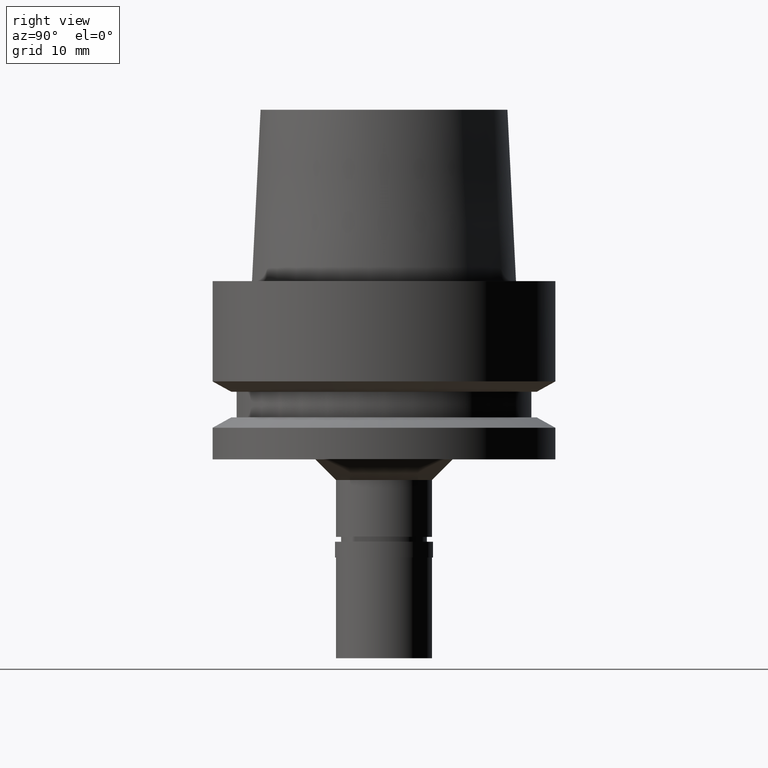
[diagram: clean part render]
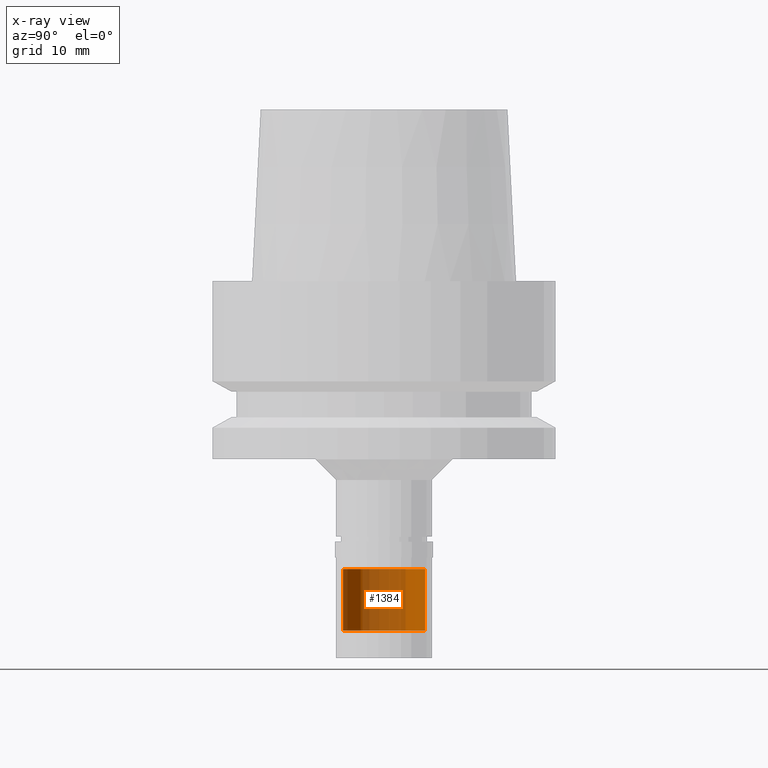
[diagram: x-ray — body ghosted, one internal face saturated and labeled with its STEP entity id]
A machine part, right view, then the same camera in x-ray: the body is ghosted and one INTERNAL B-rep face — a face not visible from any outside direction — is saturated and labeled: STEP entity #1384.
In plain terms, the highlighted cylindrical surface (partial cylindrical patch) has radius 6 mm, axis along (0, 0, 1).
Its self-contained STEP definition (entity closure, byte-faithful):
#38 = EDGE_CURVE ( 'NONE', #600, #2497, #1853, .T. ) ;
#83 = DIRECTION ( 'NONE',  ( 0.0000000000000000000, -1.000000000000000000, 0.0000000000000000000 ) ) ;
#128 = VERTEX_POINT ( 'NONE', #804 ) ;
#168 = VERTEX_POINT ( 'NONE', #767 ) ;
#411 = VECTOR ( 'NONE', #622, 1000.000000000000000 ) ;
#428 = ORIENTED_EDGE ( 'NONE', *, *, #2532, .F. ) ;
#436 = FACE_OUTER_BOUND ( 'NONE', #1080, .T. ) ;
#600 = VERTEX_POINT ( 'NONE', #1741 ) ;
#622 = DIRECTION ( 'NONE',  ( 0.0000000000000000000, 0.0000000000000000000, -1.000000000000000000 ) ) ;
#636 = CARTESIAN_POINT ( 'NONE',  ( 0.0000000000000000000, 6.000000000000000000, -42.00000000000000000 ) ) ;
#760 = ORIENTED_EDGE ( 'NONE', *, *, #38, .T. ) ;
#767 = CARTESIAN_POINT ( 'NONE',  ( 0.0000000000000000000, 6.000000000000000000, -51.00000000000000000 ) ) ;
#768 = VECTOR ( 'NONE', #787, 1000.000000000000000 ) ;
#787 = DIRECTION ( 'NONE',  ( 0.0000000000000000000, 0.0000000000000000000, -1.000000000000000000 ) ) ;
#804 = CARTESIAN_POINT ( 'NONE',  ( 0.0000000000000000000, -6.000000000000000000, -51.00000000000000000 ) ) ;
#820 = EDGE_CURVE ( 'NONE', #168, #128, #2410, .T. ) ;
#980 = CYLINDRICAL_SURFACE ( 'NONE', #2134, 6.000000000000000000 ) ;
#989 = CARTESIAN_POINT ( 'NONE',  ( 0.0000000000000000000, 6.000000000000000000, -42.00000000000000000 ) ) ;
#1080 = EDGE_LOOP ( 'NONE', ( #2646, #428, #760, #1656 ) ) ;
#1089 = DIRECTION ( 'NONE',  ( 0.0000000000000000000, 0.0000000000000000000, 1.000000000000000000 ) ) ;
#1384 = ADVANCED_FACE ( 'NONE', ( #436 ), #980, .T. ) ;
#1496 = AXIS2_PLACEMENT_3D ( 'NONE', #2105, #1089, #1761 ) ;
#1598 = CARTESIAN_POINT ( 'NONE',  ( 0.0000000000000000000, -6.000000000000000000, -42.00000000000000000 ) ) ;
#1656 = ORIENTED_EDGE ( 'NONE', *, *, #2681, .T. ) ;
#1694 = LINE ( 'NONE', #636, #411 ) ;
#1741 = CARTESIAN_POINT ( 'NONE',  ( 0.0000000000000000000, -6.000000000000000000, -42.00000000000000000 ) ) ;
#1761 = DIRECTION ( 'NONE',  ( 0.0000000000000000000, 1.000000000000000000, 0.0000000000000000000 ) ) ;
#1853 = CIRCLE ( 'NONE', #2492, 6.000000000000000000 ) ;
#1962 = CARTESIAN_POINT ( 'NONE',  ( 0.0000000000000000000, 0.0000000000000000000, -54.80000000000000426 ) ) ;
#2028 = DIRECTION ( 'NONE',  ( 0.0000000000000000000, 0.0000000000000000000, 1.000000000000000000 ) ) ;
#2105 = CARTESIAN_POINT ( 'NONE',  ( 0.0000000000000000000, 0.0000000000000000000, -51.00000000000000000 ) ) ;
#2134 = AXIS2_PLACEMENT_3D ( 'NONE', #1962, #2028, #2634 ) ;
#2346 = CARTESIAN_POINT ( 'NONE',  ( 0.0000000000000000000, 0.0000000000000000000, -42.00000000000000000 ) ) ;
#2403 = DIRECTION ( 'NONE',  ( 0.0000000000000000000, 0.0000000000000000000, -1.000000000000000000 ) ) ;
#2410 = CIRCLE ( 'NONE', #1496, 6.000000000000000000 ) ;
#2492 = AXIS2_PLACEMENT_3D ( 'NONE', #2346, #2403, #83 ) ;
#2497 = VERTEX_POINT ( 'NONE', #989 ) ;
#2532 = EDGE_CURVE ( 'NONE', #600, #128, #2654, .T. ) ;
#2634 = DIRECTION ( 'NONE',  ( 0.0000000000000000000, 1.000000000000000000, 0.0000000000000000000 ) ) ;
#2646 = ORIENTED_EDGE ( 'NONE', *, *, #820, .T. ) ;
#2654 = LINE ( 'NONE', #1598, #768 ) ;
#2681 = EDGE_CURVE ( 'NONE', #2497, #168, #1694, .T. ) ;